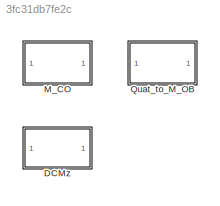
MODEL slx_3fc31db7fe2c
KIND library
CONFIG AbsTol = auto
CONFIG EnableMultiTasking = off
CONFIG FixedStep = auto
CONFIG MaxStep = auto
CONFIG MinStep = auto
CONFIG RelTol = 1e-3
CONFIG SampleTimeConstraint = Unconstrained
CONFIG Solver = VariableStepAuto
CONFIG SolverName = VariableStepAuto
CONFIG StartTime = 0.0
CONFIG StopTime = 10.0
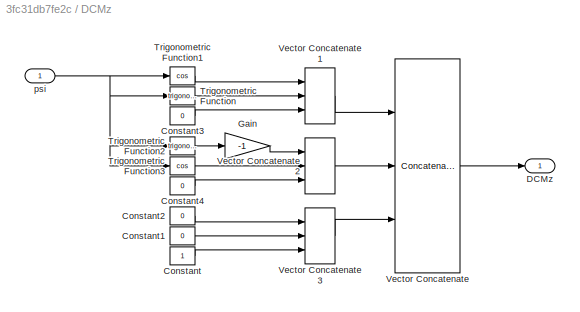
BLOCK [SubSystem] DCMz
  Ports = [1, 1]
  RequestExecContextInheritance = off
BLOCK [Constant] DCMz/Constant
  OutDataTypeStr = Inherit: Inherit via back propagation
BLOCK [Constant] DCMz/Constant1
  OutDataTypeStr = Inherit: Inherit via back propagation
  Value = 0
BLOCK [Constant] DCMz/Constant2
  OutDataTypeStr = Inherit: Inherit via back propagation
  Value = 0
BLOCK [Constant] DCMz/Constant3
  OutDataTypeStr = Inherit: Inherit via back propagation
  Value = 0
BLOCK [Constant] DCMz/Constant4
  OutDataTypeStr = Inherit: Inherit via back propagation
  Value = 0
BLOCK [Outport] DCMz/DCMz
  IconDisplay = Port number
BLOCK [Gain] DCMz/Gain
  Gain = -1
  OutDataTypeStr = Inherit: Inherit via internal rule
  ParamDataTypeStr = Inherit: Inherit via internal rule
  SaturateOnIntegerOverflow = off
BLOCK [Trigonometry] DCMz/Trigonometric Function
  Ports = [1, 1]
BLOCK [Trigonometry] DCMz/Trigonometric Function1
  Operator = cos
  Ports = [1, 1]
BLOCK [Trigonometry] DCMz/Trigonometric Function2
  Ports = [1, 1]
BLOCK [Trigonometry] DCMz/Trigonometric Function3
  Operator = cos
  Ports = [1, 1]
BLOCK [Concatenate] DCMz/Vector Concatenate
  ConcatenateDimension = 2
  Mode = Multidimensional array
  NumInputs = 3
  Ports = [3, 1]
BLOCK [Concatenate] DCMz/Vector Concatenate1
  Mode = Multidimensional array
  NumInputs = 3
  Ports = [3, 1]
BLOCK [Concatenate] DCMz/Vector Concatenate2
  Mode = Multidimensional array
  NumInputs = 3
  Ports = [3, 1]
BLOCK [Concatenate] DCMz/Vector Concatenate3
  Mode = Multidimensional array
  NumInputs = 3
  Ports = [3, 1]
BLOCK [Inport] DCMz/psi
  IconDisplay = Port number
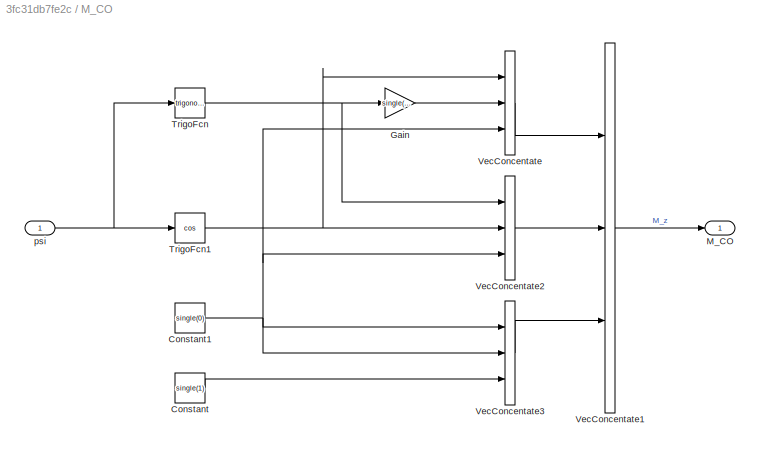
BLOCK [SubSystem] M_CO
  Ports = [1, 1]
  RequestExecContextInheritance = off
BLOCK [Constant] M_CO/Constant
  AttributesFormatString = Value: %<Value>
  OutDataTypeStr = Inherit: Inherit via back propagation
  Value = single(1)
  VectorParams1D = off
BLOCK [Constant] M_CO/Constant1
  AttributesFormatString = Value: %<Value>
  OutDataTypeStr = Inherit: Inherit via back propagation
  Value = single(0)
  VectorParams1D = off
BLOCK [Gain] M_CO/Gain
  AttributesFormatString = Gain: %<Gain>
  Gain = single(-1)
  SaturateOnIntegerOverflow = off
BLOCK [Outport] M_CO/M_CO
  AttributesFormatString = Unit: %<Unit>
  IconDisplay = Port number
  PortDimensions = [3,3]
  Unit = 1
BLOCK [Trigonometry] M_CO/TrigoFcn
  OutputSignalType = real
  Ports = [1, 1]
BLOCK [Trigonometry] M_CO/TrigoFcn1
  Operator = cos
  OutputSignalType = real
  Ports = [1, 1]
BLOCK [Concatenate] M_CO/VecConcentate
  Mode = Multidimensional array
  NumInputs = 3
  Ports = [3, 1]
BLOCK [Concatenate] M_CO/VecConcentate1
  ConcatenateDimension = 2
  Mode = Multidimensional array
  NumInputs = 3
  Ports = [3, 1]
BLOCK [Concatenate] M_CO/VecConcentate2
  Mode = Multidimensional array
  NumInputs = 3
  Ports = [3, 1]
BLOCK [Concatenate] M_CO/VecConcentate3
  Mode = Multidimensional array
  NumInputs = 3
  Ports = [3, 1]
BLOCK [Inport] M_CO/psi
  AttributesFormatString = Unit: %<Unit>
  IconDisplay = Port number
  PortDimensions = 1
  Unit = rad
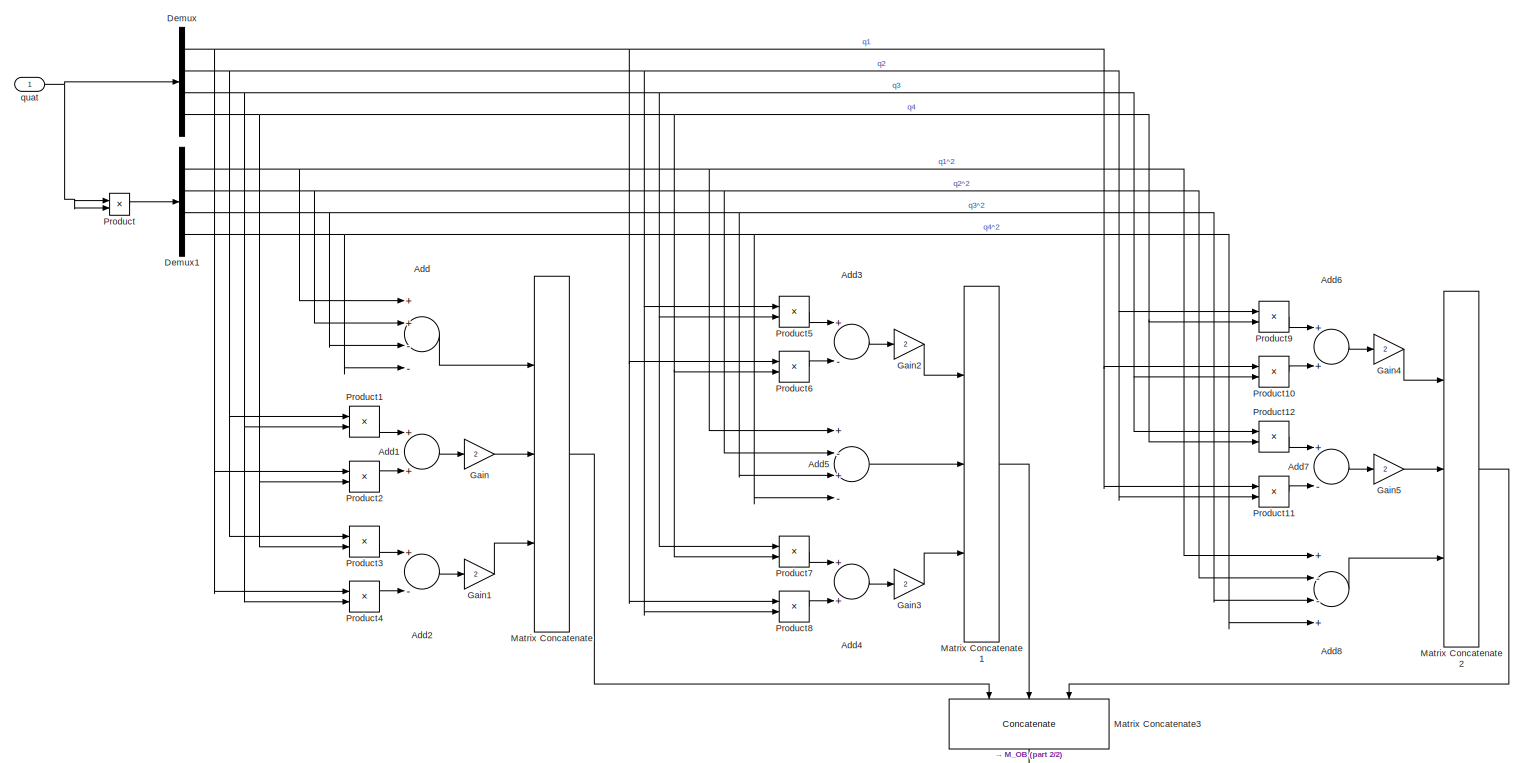
[diagram: Quat_to_M_OB - part 1/2, most of the canvas]
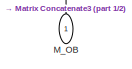
[diagram: Quat_to_M_OB - part 2/2, bottom right region]
BLOCK [SubSystem] Quat_to_M_OB
  Ports = [1, 1]
  RequestExecContextInheritance = off
BLOCK [Sum] Quat_to_M_OB/Add
  InputSameDT = off
  Inputs = ++--
  OutDataTypeStr = Inherit: Inherit via internal rule
  Ports = [4, 1]
  SaturateOnIntegerOverflow = off
BLOCK [Sum] Quat_to_M_OB/Add1
  InputSameDT = off
  OutDataTypeStr = Inherit: Inherit via internal rule
  Ports = [2, 1]
  SaturateOnIntegerOverflow = off
BLOCK [Sum] Quat_to_M_OB/Add2
  InputSameDT = off
  Inputs = +-
  OutDataTypeStr = Inherit: Inherit via internal rule
  Ports = [2, 1]
  SaturateOnIntegerOverflow = off
BLOCK [Sum] Quat_to_M_OB/Add3
  InputSameDT = off
  Inputs = +-
  OutDataTypeStr = Inherit: Inherit via internal rule
  Ports = [2, 1]
  SaturateOnIntegerOverflow = off
BLOCK [Sum] Quat_to_M_OB/Add4
  InputSameDT = off
  OutDataTypeStr = Inherit: Inherit via internal rule
  Ports = [2, 1]
  SaturateOnIntegerOverflow = off
BLOCK [Sum] Quat_to_M_OB/Add5
  InputSameDT = off
  Inputs = +-+-
  OutDataTypeStr = Inherit: Inherit via internal rule
  Ports = [4, 1]
  SaturateOnIntegerOverflow = off
BLOCK [Sum] Quat_to_M_OB/Add6
  InputSameDT = off
  OutDataTypeStr = Inherit: Inherit via internal rule
  Ports = [2, 1]
  SaturateOnIntegerOverflow = off
BLOCK [Sum] Quat_to_M_OB/Add7
  InputSameDT = off
  Inputs = +-
  OutDataTypeStr = Inherit: Inherit via internal rule
  Ports = [2, 1]
  SaturateOnIntegerOverflow = off
BLOCK [Sum] Quat_to_M_OB/Add8
  InputSameDT = off
  Inputs = +--+
  OutDataTypeStr = Inherit: Inherit via internal rule
  Ports = [4, 1]
  SaturateOnIntegerOverflow = off
BLOCK [Demux] Quat_to_M_OB/Demux
  DisplayOption = bar
  Ports = [1, 4]
BLOCK [Demux] Quat_to_M_OB/Demux1
  DisplayOption = bar
  Ports = [1, 4]
BLOCK [Gain] Quat_to_M_OB/Gain
  Gain = 2
  ParamDataTypeStr = Inherit: Inherit via internal rule
  SaturateOnIntegerOverflow = off
BLOCK [Gain] Quat_to_M_OB/Gain1
  Gain = 2
  ParamDataTypeStr = Inherit: Inherit via internal rule
  SaturateOnIntegerOverflow = off
BLOCK [Gain] Quat_to_M_OB/Gain2
  Gain = 2
  ParamDataTypeStr = Inherit: Inherit via internal rule
  SaturateOnIntegerOverflow = off
BLOCK [Gain] Quat_to_M_OB/Gain3
  Gain = 2
  ParamDataTypeStr = Inherit: Inherit via internal rule
  SaturateOnIntegerOverflow = off
BLOCK [Gain] Quat_to_M_OB/Gain4
  Gain = 2
  ParamDataTypeStr = Inherit: Inherit via internal rule
  SaturateOnIntegerOverflow = off
BLOCK [Gain] Quat_to_M_OB/Gain5
  Gain = 2
  ParamDataTypeStr = Inherit: Inherit via internal rule
  SaturateOnIntegerOverflow = off
BLOCK [Outport] Quat_to_M_OB/M_OB
  IconDisplay = Port number
BLOCK [Concatenate] Quat_to_M_OB/Matrix Concatenate
  NumInputs = 3
  Ports = [3, 1]
BLOCK [Concatenate] Quat_to_M_OB/Matrix Concatenate1
  NumInputs = 3
  Ports = [3, 1]
BLOCK [Concatenate] Quat_to_M_OB/Matrix Concatenate2
  NumInputs = 3
  Ports = [3, 1]
BLOCK [Concatenate] Quat_to_M_OB/Matrix Concatenate3
  ConcatenateDimension = 2
  Mode = Multidimensional array
  NumInputs = 3
  Ports = [3, 1]
BLOCK [Product] Quat_to_M_OB/Product
  InputSameDT = off
  OutDataTypeStr = Inherit: Inherit via internal rule
  Ports = [2, 1]
  SaturateOnIntegerOverflow = off
BLOCK [Product] Quat_to_M_OB/Product1
  InputSameDT = off
  OutDataTypeStr = Inherit: Inherit via internal rule
  Ports = [2, 1]
  SaturateOnIntegerOverflow = off
BLOCK [Product] Quat_to_M_OB/Product10
  InputSameDT = off
  OutDataTypeStr = Inherit: Inherit via internal rule
  Ports = [2, 1]
  SaturateOnIntegerOverflow = off
BLOCK [Product] Quat_to_M_OB/Product11
  InputSameDT = off
  OutDataTypeStr = Inherit: Inherit via internal rule
  Ports = [2, 1]
  SaturateOnIntegerOverflow = off
BLOCK [Product] Quat_to_M_OB/Product12
  InputSameDT = off
  OutDataTypeStr = Inherit: Inherit via internal rule
  Ports = [2, 1]
  SaturateOnIntegerOverflow = off
BLOCK [Product] Quat_to_M_OB/Product2
  InputSameDT = off
  OutDataTypeStr = Inherit: Inherit via internal rule
  Ports = [2, 1]
  SaturateOnIntegerOverflow = off
BLOCK [Product] Quat_to_M_OB/Product3
  InputSameDT = off
  OutDataTypeStr = Inherit: Inherit via internal rule
  Ports = [2, 1]
  SaturateOnIntegerOverflow = off
BLOCK [Product] Quat_to_M_OB/Product4
  InputSameDT = off
  OutDataTypeStr = Inherit: Inherit via internal rule
  Ports = [2, 1]
  SaturateOnIntegerOverflow = off
BLOCK [Product] Quat_to_M_OB/Product5
  InputSameDT = off
  OutDataTypeStr = Inherit: Inherit via internal rule
  Ports = [2, 1]
  SaturateOnIntegerOverflow = off
BLOCK [Product] Quat_to_M_OB/Product6
  InputSameDT = off
  OutDataTypeStr = Inherit: Inherit via internal rule
  Ports = [2, 1]
  SaturateOnIntegerOverflow = off
BLOCK [Product] Quat_to_M_OB/Product7
  InputSameDT = off
  OutDataTypeStr = Inherit: Inherit via internal rule
  Ports = [2, 1]
  SaturateOnIntegerOverflow = off
BLOCK [Product] Quat_to_M_OB/Product8
  InputSameDT = off
  OutDataTypeStr = Inherit: Inherit via internal rule
  Ports = [2, 1]
  SaturateOnIntegerOverflow = off
BLOCK [Product] Quat_to_M_OB/Product9
  InputSameDT = off
  OutDataTypeStr = Inherit: Inherit via internal rule
  Ports = [2, 1]
  SaturateOnIntegerOverflow = off
BLOCK [Inport] Quat_to_M_OB/quat
  IconDisplay = Port number
LINE DCMz/Constant1:1 -> DCMz/Vector Concatenate3:2
LINE DCMz/Constant2:1 -> DCMz/Vector Concatenate3:1
LINE DCMz/Constant3:1 -> DCMz/Vector Concatenate1:3
LINE DCMz/Constant4:1 -> DCMz/Vector Concatenate2:3
LINE DCMz/Constant:1 -> DCMz/Vector Concatenate3:3
LINE DCMz/Gain:1 -> DCMz/Vector Concatenate2:1
LINE DCMz/Trigonometric Function1:1 -> DCMz/Vector Concatenate1:1
LINE DCMz/Trigonometric Function2:1 -> DCMz/Gain:1
LINE DCMz/Trigonometric Function3:1 -> DCMz/Vector Concatenate2:2
LINE DCMz/Trigonometric Function:1 -> DCMz/Vector Concatenate1:2
LINE DCMz/Vector Concatenate1:1 -> DCMz/Vector Concatenate:1
LINE DCMz/Vector Concatenate2:1 -> DCMz/Vector Concatenate:2
LINE DCMz/Vector Concatenate3:1 -> DCMz/Vector Concatenate:3
LINE DCMz/Vector Concatenate:1 -> DCMz/DCMz:1
NET DCMz/psi:1 -> DCMz/Trigonometric Function1:1, DCMz/Trigonometric Function2:1, DCMz/Trigonometric Function3:1, DCMz/Trigonometric Function:1
NET M_CO/Constant1:1 -> M_CO/VecConcentate2:3, M_CO/VecConcentate3:1, M_CO/VecConcentate3:2, M_CO/VecConcentate:3
LINE M_CO/Constant:1 -> M_CO/VecConcentate3:3
LINE M_CO/Gain:1 -> M_CO/VecConcentate:2
NET M_CO/TrigoFcn1:1 -> M_CO/VecConcentate2:2, M_CO/VecConcentate:1
NET M_CO/TrigoFcn:1 -> M_CO/Gain:1, M_CO/VecConcentate2:1
LINE M_CO/VecConcentate1:1 -> M_CO/M_CO:1
LINE M_CO/VecConcentate2:1 -> M_CO/VecConcentate1:2
LINE M_CO/VecConcentate3:1 -> M_CO/VecConcentate1:3
LINE M_CO/VecConcentate:1 -> M_CO/VecConcentate1:1
NET M_CO/psi:1 -> M_CO/TrigoFcn1:1, M_CO/TrigoFcn:1
LINE Quat_to_M_OB/Add1:1 -> Quat_to_M_OB/Gain:1
LINE Quat_to_M_OB/Add2:1 -> Quat_to_M_OB/Gain1:1
LINE Quat_to_M_OB/Add3:1 -> Quat_to_M_OB/Gain2:1
LINE Quat_to_M_OB/Add4:1 -> Quat_to_M_OB/Gain3:1
LINE Quat_to_M_OB/Add5:1 -> Quat_to_M_OB/Matrix Concatenate1:2
LINE Quat_to_M_OB/Add6:1 -> Quat_to_M_OB/Gain4:1
LINE Quat_to_M_OB/Add7:1 -> Quat_to_M_OB/Gain5:1
LINE Quat_to_M_OB/Add8:1 -> Quat_to_M_OB/Matrix Concatenate2:3
LINE Quat_to_M_OB/Add:1 -> Quat_to_M_OB/Matrix Concatenate:1
NET Quat_to_M_OB/Demux1:1 -> Quat_to_M_OB/Add5:1, Quat_to_M_OB/Add8:1, Quat_to_M_OB/Add:1
NET Quat_to_M_OB/Demux1:2 -> Quat_to_M_OB/Add5:2, Quat_to_M_OB/Add8:2, Quat_to_M_OB/Add:2
NET Quat_to_M_OB/Demux1:3 -> Quat_to_M_OB/Add5:3, Quat_to_M_OB/Add8:3, Quat_to_M_OB/Add:3
NET Quat_to_M_OB/Demux1:4 -> Quat_to_M_OB/Add5:4, Quat_to_M_OB/Add8:4, Quat_to_M_OB/Add:4
NET Quat_to_M_OB/Demux:1 -> Quat_to_M_OB/Product10:1, Quat_to_M_OB/Product11:1, Quat_to_M_OB/Product2:1, Quat_to_M_OB/Product4:1, Quat_to_M_OB/Product6:1, Quat_to_M_OB/Product8:1
NET Quat_to_M_OB/Demux:2 -> Quat_to_M_OB/Product11:2, Quat_to_M_OB/Product1:1, Quat_to_M_OB/Product3:1, Quat_to_M_OB/Product5:1, Quat_to_M_OB/Product8:2, Quat_to_M_OB/Product9:1
NET Quat_to_M_OB/Demux:3 -> Quat_to_M_OB/Product10:2, Quat_to_M_OB/Product12:1, Quat_to_M_OB/Product1:2, Quat_to_M_OB/Product4:2, Quat_to_M_OB/Product5:2, Quat_to_M_OB/Product7:1
NET Quat_to_M_OB/Demux:4 -> Quat_to_M_OB/Product12:2, Quat_to_M_OB/Product2:2, Quat_to_M_OB/Product3:2, Quat_to_M_OB/Product6:2, Quat_to_M_OB/Product7:2, Quat_to_M_OB/Product9:2
LINE Quat_to_M_OB/Gain1:1 -> Quat_to_M_OB/Matrix Concatenate:3
LINE Quat_to_M_OB/Gain2:1 -> Quat_to_M_OB/Matrix Concatenate1:1
LINE Quat_to_M_OB/Gain3:1 -> Quat_to_M_OB/Matrix Concatenate1:3
LINE Quat_to_M_OB/Gain4:1 -> Quat_to_M_OB/Matrix Concatenate2:1
LINE Quat_to_M_OB/Gain5:1 -> Quat_to_M_OB/Matrix Concatenate2:2
LINE Quat_to_M_OB/Gain:1 -> Quat_to_M_OB/Matrix Concatenate:2
LINE Quat_to_M_OB/Matrix Concatenate1:1 -> Quat_to_M_OB/Matrix Concatenate3:2
LINE Quat_to_M_OB/Matrix Concatenate2:1 -> Quat_to_M_OB/Matrix Concatenate3:3
LINE Quat_to_M_OB/Matrix Concatenate3:1 -> Quat_to_M_OB/M_OB:1
LINE Quat_to_M_OB/Matrix Concatenate:1 -> Quat_to_M_OB/Matrix Concatenate3:1
LINE Quat_to_M_OB/Product10:1 -> Quat_to_M_OB/Add6:2
LINE Quat_to_M_OB/Product11:1 -> Quat_to_M_OB/Add7:2
LINE Quat_to_M_OB/Product12:1 -> Quat_to_M_OB/Add7:1
LINE Quat_to_M_OB/Product1:1 -> Quat_to_M_OB/Add1:1
LINE Quat_to_M_OB/Product2:1 -> Quat_to_M_OB/Add1:2
LINE Quat_to_M_OB/Product3:1 -> Quat_to_M_OB/Add2:1
LINE Quat_to_M_OB/Product4:1 -> Quat_to_M_OB/Add2:2
LINE Quat_to_M_OB/Product5:1 -> Quat_to_M_OB/Add3:1
LINE Quat_to_M_OB/Product6:1 -> Quat_to_M_OB/Add3:2
LINE Quat_to_M_OB/Product7:1 -> Quat_to_M_OB/Add4:1
LINE Quat_to_M_OB/Product8:1 -> Quat_to_M_OB/Add4:2
LINE Quat_to_M_OB/Product9:1 -> Quat_to_M_OB/Add6:1
LINE Quat_to_M_OB/Product:1 -> Quat_to_M_OB/Demux1:1
NET Quat_to_M_OB/quat:1 -> Quat_to_M_OB/Demux:1, Quat_to_M_OB/Product:1, Quat_to_M_OB/Product:2
note: NET lines group one-source signal fan-out (src -> all destinations, sorted); 1:1 wires keep LINE
